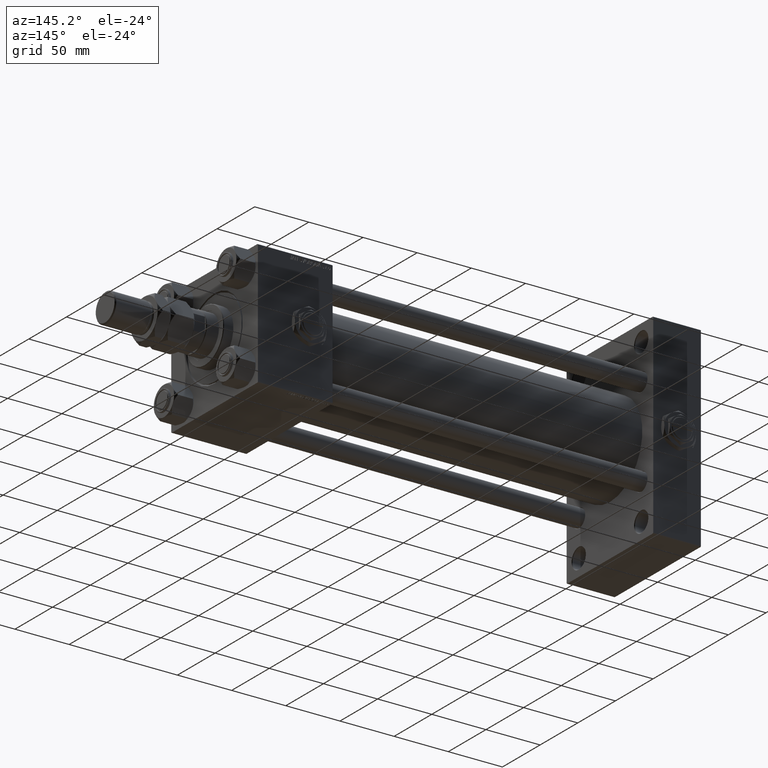
[diagram: clean part render]
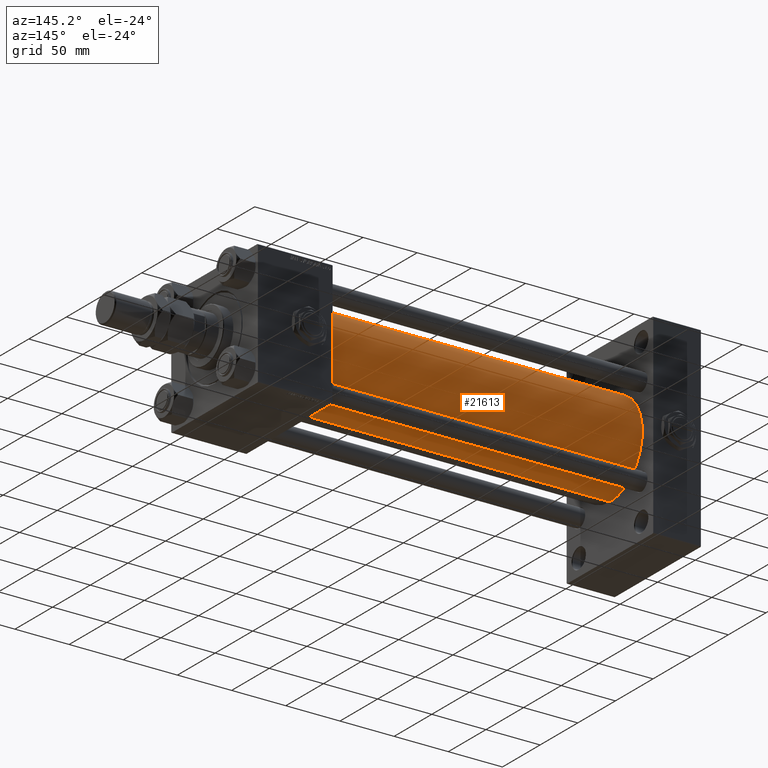
[diagram: same view with one face highlighted and labeled with its STEP entity id]
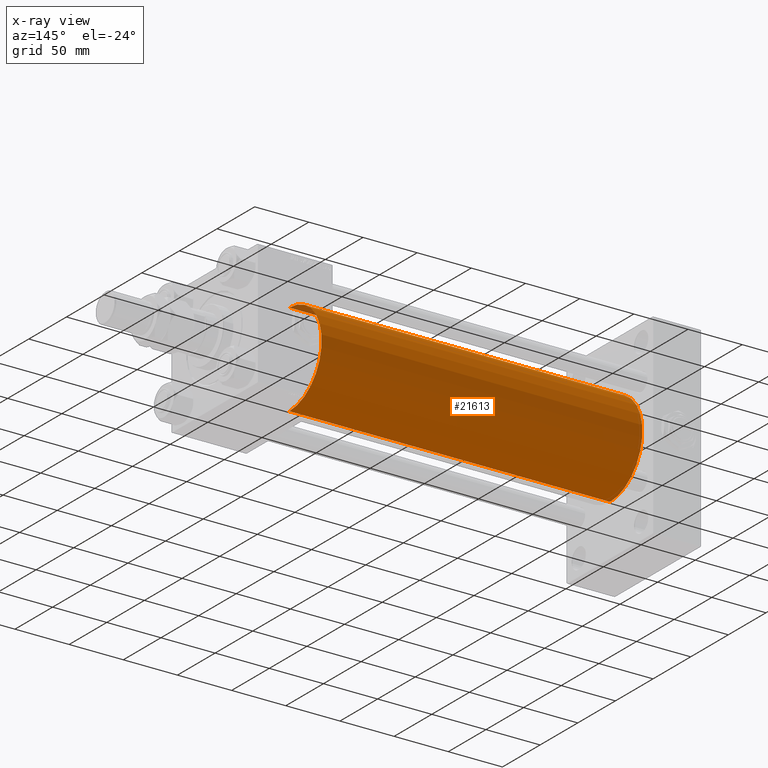
[diagram: x-ray of the same camera — body ghosted, the highlighted face saturated]
A machine part, auxiliary view. The second image highlights one B-rep face of the part: STEP entity #21613.
The next image is the same camera in x-ray: the body ghosted, the highlighted face saturated — about 0% of this face is hidden behind the body in this view.
In plain terms, the highlighted cylindrical surface (partial cylindrical patch) has radius 43 mm, axis along (-1, -0, -0).
Its self-contained STEP definition (entity closure, byte-faithful):
#860 = DIRECTION ( 'NONE',  ( 1.000000000000000000, -0.000000000000000000, 0.000000000000000000 ) ) ;
#1106 = ORIENTED_EDGE ( 'NONE', *, *, #34946, .F. ) ;
#1526 = DIRECTION ( 'NONE',  ( -1.000000000000000000, -0.000000000000000000, -0.000000000000000000 ) ) ;
#7271 = CIRCLE ( 'NONE', #44851, 43.00000000000000000 ) ;
#7603 = VERTEX_POINT ( 'NONE', #44588 ) ;
#8873 = CIRCLE ( 'NONE', #31573, 43.00000000000000000 ) ;
#9613 = CARTESIAN_POINT ( 'NONE',  ( 43.99999999999998579, -2.602085213965210642E-15, 0.000000000000000000 ) ) ;
#9940 = CYLINDRICAL_SURFACE ( 'NONE', #31688, 43.00000000000000000 ) ;
#11864 = DIRECTION ( 'NONE',  ( 1.000000000000000000, 0.000000000000000000, 0.000000000000000000 ) ) ;
#13761 = ORIENTED_EDGE ( 'NONE', *, *, #16166, .T. ) ;
#14041 = CARTESIAN_POINT ( 'NONE',  ( 339.9999999999999432, -2.602085213965210642E-15, 0.000000000000000000 ) ) ;
#16166 = EDGE_CURVE ( 'NONE', #7603, #21608, #8873, .T. ) ;
#17889 = FACE_OUTER_BOUND ( 'NONE', #25094, .T. ) ;
#19487 = VECTOR ( 'NONE', #37755, 1000.000000000000000 ) ;
#21608 = VERTEX_POINT ( 'NONE', #33253 ) ;
#21613 = ADVANCED_FACE ( 'NONE', ( #17889 ), #9940, .T. ) ;
#21732 = DIRECTION ( 'NONE',  ( 0.000000000000000000, 0.000000000000000000, 1.000000000000000000 ) ) ;
#22261 = DIRECTION ( 'NONE',  ( -1.000000000000000000, -0.000000000000000000, -0.000000000000000000 ) ) ;
#24892 = LINE ( 'NONE', #49530, #19487 ) ;
#25094 = EDGE_LOOP ( 'NONE', ( #1106, #35004, #13761, #49594 ) ) ;
#28791 = CARTESIAN_POINT ( 'NONE',  ( 339.9999999999999432, 2.663896022368408223E-15, -43.00000000000000000 ) ) ;
#31573 = AXIS2_PLACEMENT_3D ( 'NONE', #9613, #860, #51220 ) ;
#31688 = AXIS2_PLACEMENT_3D ( 'NONE', #14041, #22261, #21732 ) ;
#32671 = DIRECTION ( 'NONE',  ( 0.000000000000000000, 0.000000000000000000, -1.000000000000000000 ) ) ;
#33253 = CARTESIAN_POINT ( 'NONE',  ( 43.99999999999998579, -2.602085213965210642E-15, 43.00000000000000000 ) ) ;
#33555 = CARTESIAN_POINT ( 'NONE',  ( 339.9999999999999432, -2.602085213965210642E-15, 43.00000000000000000 ) ) ;
#33729 = VECTOR ( 'NONE', #1526, 1000.000000000000000 ) ;
#34946 = EDGE_CURVE ( 'NONE', #50929, #52716, #7271, .T. ) ;
#35004 = ORIENTED_EDGE ( 'NONE', *, *, #51969, .T. ) ;
#35472 = CARTESIAN_POINT ( 'NONE',  ( 339.9999999999999432, -2.602085213965210642E-15, 43.00000000000000000 ) ) ;
#37755 = DIRECTION ( 'NONE',  ( -1.000000000000000000, -0.000000000000000000, -0.000000000000000000 ) ) ;
#39025 = LINE ( 'NONE', #35472, #33729 ) ;
#44220 = EDGE_CURVE ( 'NONE', #52716, #21608, #39025, .T. ) ;
#44588 = CARTESIAN_POINT ( 'NONE',  ( 43.99999999999998579, 2.663896022368408223E-15, -43.00000000000000000 ) ) ;
#44851 = AXIS2_PLACEMENT_3D ( 'NONE', #49354, #11864, #32671 ) ;
#49354 = CARTESIAN_POINT ( 'NONE',  ( 339.9999999999999432, -2.602085213965210642E-15, 0.000000000000000000 ) ) ;
#49530 = CARTESIAN_POINT ( 'NONE',  ( 339.9999999999999432, 2.663896022368408223E-15, -43.00000000000000000 ) ) ;
#49594 = ORIENTED_EDGE ( 'NONE', *, *, #44220, .F. ) ;
#50929 = VERTEX_POINT ( 'NONE', #28791 ) ;
#51220 = DIRECTION ( 'NONE',  ( 0.000000000000000000, 0.000000000000000000, 1.000000000000000000 ) ) ;
#51969 = EDGE_CURVE ( 'NONE', #50929, #7603, #24892, .T. ) ;
#52716 = VERTEX_POINT ( 'NONE', #33555 ) ;